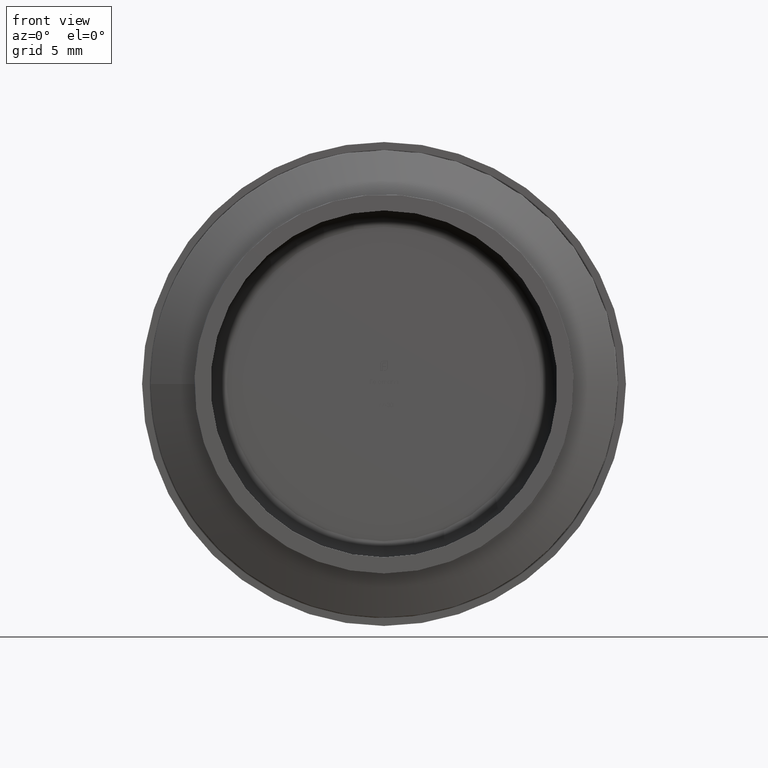
[diagram: clean part render]
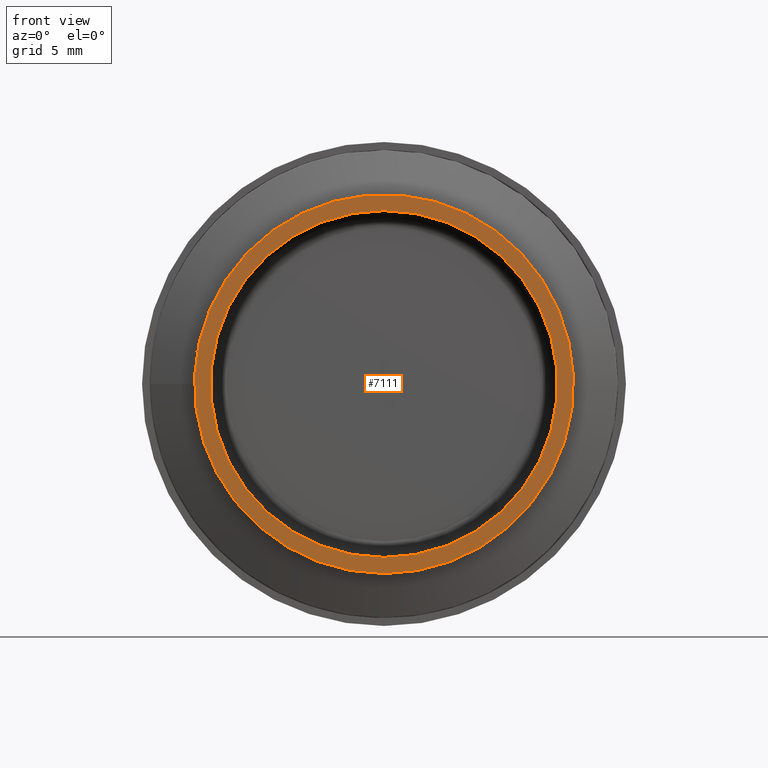
[diagram: same view with one face highlighted and labeled with its STEP entity id]
A machine part, front view. The second image highlights one B-rep face of the part: STEP entity #7111.
In plain terms, the highlighted planar face has unit normal (0, -1, -0).
Its self-contained STEP definition (entity closure, byte-faithful):
#312 = FACE_OUTER_BOUND ( 'NONE', #6001, .T. ) ;
#715 = CIRCLE ( 'NONE', #7632, 11.75000000000000000 ) ;
#1128 = ORIENTED_EDGE ( 'NONE', *, *, #5924, .T. ) ;
#1164 = AXIS2_PLACEMENT_3D ( 'NONE', #4157, #4999, #6743 ) ;
#1198 = DIRECTION ( 'NONE',  ( 0.000000000000000000, 0.000000000000000000, -1.000000000000000000 ) ) ;
#2780 = DIRECTION ( 'NONE',  ( 0.000000000000000000, -1.000000000000000000, -0.000000000000000000 ) ) ;
#4157 = CARTESIAN_POINT ( 'NONE',  ( 0.000000000000000000, 0.000000000000000000, 0.000000000000000000 ) ) ;
#4570 = PLANE ( 'NONE',  #8572 ) ;
#4703 = DIRECTION ( 'NONE',  ( -0.000000000000000000, -1.000000000000000000, -0.000000000000000000 ) ) ;
#4999 = DIRECTION ( 'NONE',  ( -0.000000000000000000, -1.000000000000000000, -0.000000000000000000 ) ) ;
#5799 = ORIENTED_EDGE ( 'NONE', *, *, #10768, .F. ) ;
#5924 = EDGE_CURVE ( 'NONE', #10909, #10909, #715, .T. ) ;
#6001 = EDGE_LOOP ( 'NONE', ( #1128 ) ) ;
#6025 = CARTESIAN_POINT ( 'NONE',  ( 0.000000000000000000, 0.000000000000000000, -10.75000000000000000 ) ) ;
#6051 = VERTEX_POINT ( 'NONE', #6025 ) ;
#6743 = DIRECTION ( 'NONE',  ( 0.000000000000000000, 0.000000000000000000, -1.000000000000000000 ) ) ;
#6910 = CARTESIAN_POINT ( 'NONE',  ( 0.000000000000000000, 0.000000000000000000, -11.75000000000000000 ) ) ;
#7035 = FACE_BOUND ( 'NONE', #7504, .T. ) ;
#7111 = ADVANCED_FACE ( 'NONE', ( #312, #7035 ), #4570, .T. ) ;
#7504 = EDGE_LOOP ( 'NONE', ( #5799 ) ) ;
#7632 = AXIS2_PLACEMENT_3D ( 'NONE', #9904, #4703, #7988 ) ;
#7988 = DIRECTION ( 'NONE',  ( 0.000000000000000000, 0.000000000000000000, -1.000000000000000000 ) ) ;
#8572 = AXIS2_PLACEMENT_3D ( 'NONE', #10632, #2780, #1198 ) ;
#9904 = CARTESIAN_POINT ( 'NONE',  ( 0.000000000000000000, 0.000000000000000000, 0.000000000000000000 ) ) ;
#9938 = CIRCLE ( 'NONE', #1164, 10.75000000000000000 ) ;
#10632 = CARTESIAN_POINT ( 'NONE',  ( 11.75000000000000000, 4.592425496802566823E-17, 0.000000000000000000 ) ) ;
#10768 = EDGE_CURVE ( 'NONE', #6051, #6051, #9938, .T. ) ;
#10909 = VERTEX_POINT ( 'NONE', #6910 ) ;